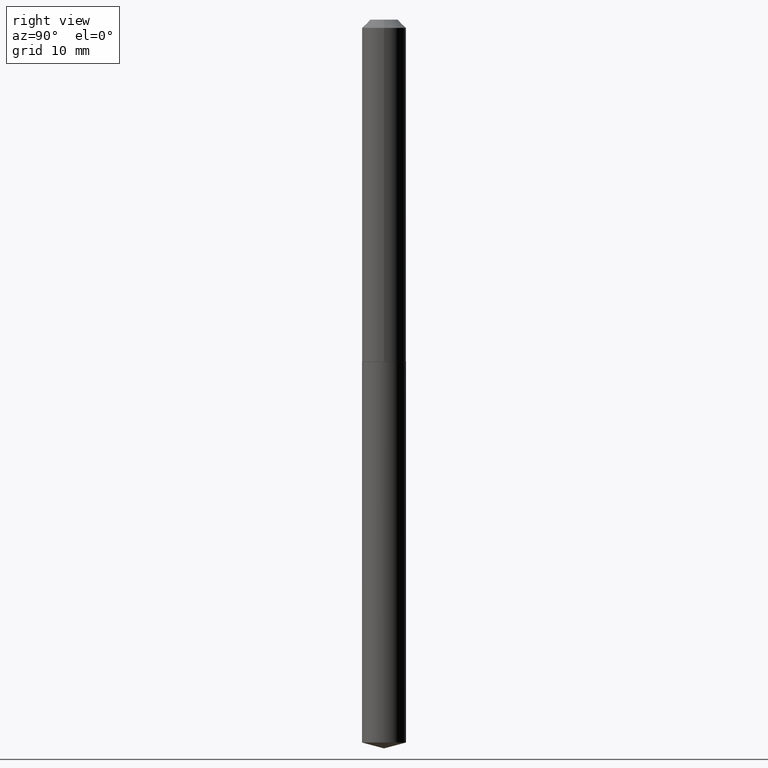
[diagram: clean part render]
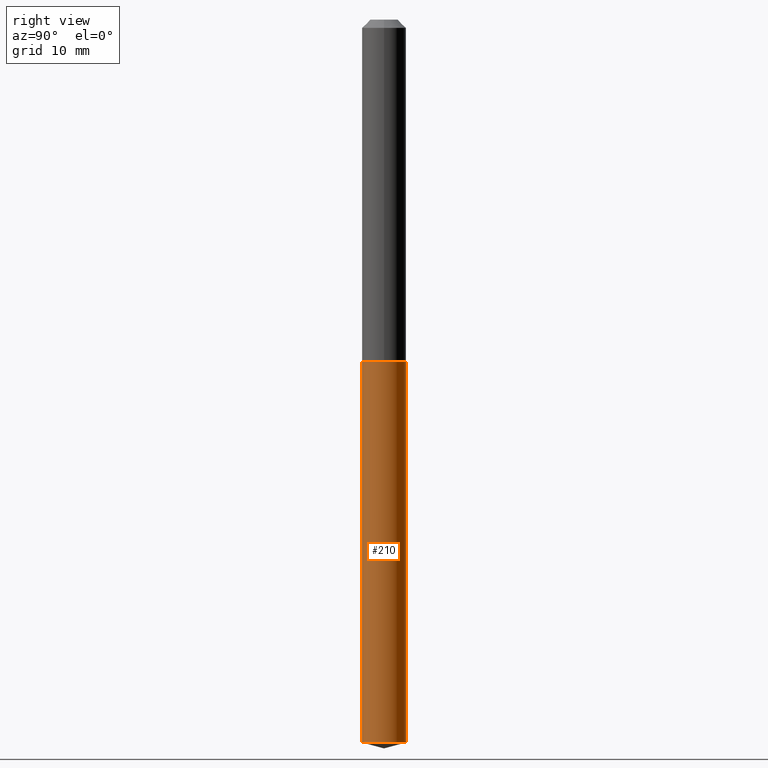
[diagram: same view with one face highlighted and labeled with its STEP entity id]
A machine part, right view. The second image highlights one B-rep face of the part: STEP entity #210.
In plain terms, the highlighted cylindrical surface (edge-blend (fillet) strip) has radius 2.1082 mm, axis along (-0, 0, 1).
Its self-contained STEP definition (entity closure, byte-faithful):
#7 = AXIS2_PLACEMENT_3D ( 'NONE', #113, #145, #199 ) ;
#9 = VERTEX_POINT ( 'NONE', #299 ) ;
#12 = VECTOR ( 'NONE', #128, 39.37007874015748143 ) ;
#17 = DIRECTION ( 'NONE',  ( -2.445430008687302555E-29, 3.491536899068260310E-15, 1.000000000000000000 ) ) ;
#24 = CARTESIAN_POINT ( 'NONE',  ( -5.795859022478934309E-16, -0.08300000000000953837, -2.727760217028216250 ) ) ;
#33 = DIRECTION ( 'NONE',  ( -2.445430008687302555E-29, 3.491536899068260310E-15, 1.000000000000000000 ) ) ;
#42 = CARTESIAN_POINT ( 'NONE',  ( -5.795859022479286338E-16, -0.08300000000000451461, -1.290999999999999481 ) ) ;
#51 = CARTESIAN_POINT ( 'NONE',  ( 6.670596778793894095E-29, -9.524003721313840210E-15, -2.727760217028216694 ) ) ;
#53 = ORIENTED_EDGE ( 'NONE', *, *, #249, .F. ) ;
#65 = LINE ( 'NONE', #97, #101 ) ;
#90 = CARTESIAN_POINT ( 'NONE',  ( 5.897504706809497452E-16, 0.08299999999999047029, -2.727760217028217582 ) ) ;
#95 = EDGE_CURVE ( 'NONE', #381, #9, #65, .T. ) ;
#97 = CARTESIAN_POINT ( 'NONE',  ( 5.897504706809146409E-16, 0.08299999999999550793, -1.290999999999999925 ) ) ;
#101 = VECTOR ( 'NONE', #33, 39.37007874015748143 ) ;
#110 = CYLINDRICAL_SURFACE ( 'NONE', #359, 0.08300000000000000433 ) ;
#113 = CARTESIAN_POINT ( 'NONE',  ( 3.157100228785010288E-29, -4.507502408446500497E-15, -1.290999999999999703 ) ) ;
#128 = DIRECTION ( 'NONE',  ( -2.445430008687302555E-29, 3.491536899068260310E-15, 1.000000000000000000 ) ) ;
#129 = AXIS2_PLACEMENT_3D ( 'NONE', #51, #17, #192 ) ;
#138 = FACE_OUTER_BOUND ( 'NONE', #385, .T. ) ;
#145 = DIRECTION ( 'NONE',  ( -2.445430008687302555E-29, 3.491536899068260310E-15, 1.000000000000000000 ) ) ;
#146 = ORIENTED_EDGE ( 'NONE', *, *, #184, .F. ) ;
#155 = LINE ( 'NONE', #42, #12 ) ;
#158 = CIRCLE ( 'NONE', #7, 0.08300000000000000433 ) ;
#184 = EDGE_CURVE ( 'NONE', #368, #226, #155, .T. ) ;
#192 = DIRECTION ( 'NONE',  ( -6.982962677686266711E-15, -1.000000000000000000, 6.582766249793405374E-15 ) ) ;
#199 = DIRECTION ( 'NONE',  ( -6.982962677686266711E-15, -1.000000000000000000, 3.291383124896702687E-15 ) ) ;
#210 = ADVANCED_FACE ( 'NONE', ( #138 ), #110, .T. ) ;
#224 = ORIENTED_EDGE ( 'NONE', *, *, #240, .T. ) ;
#226 = VERTEX_POINT ( 'NONE', #347 ) ;
#227 = DIRECTION ( 'NONE',  ( -6.982962677686266711E-15, -1.000000000000000000, 3.291383124896702687E-15 ) ) ;
#240 = EDGE_CURVE ( 'NONE', #368, #381, #261, .T. ) ;
#249 = EDGE_CURVE ( 'NONE', #226, #9, #158, .T. ) ;
#261 = CIRCLE ( 'NONE', #129, 0.08300000000000000433 ) ;
#299 = CARTESIAN_POINT ( 'NONE',  ( 5.897504706809500410E-16, 0.08299999999999550793, -1.290999999999999925 ) ) ;
#311 = ORIENTED_EDGE ( 'NONE', *, *, #95, .T. ) ;
#347 = CARTESIAN_POINT ( 'NONE',  ( -5.795859022479286338E-16, -0.08300000000000451461, -1.290999999999999481 ) ) ;
#352 = CARTESIAN_POINT ( 'NONE',  ( 3.157100228785010288E-29, -4.507502408446500497E-15, -1.290999999999999703 ) ) ;
#359 = AXIS2_PLACEMENT_3D ( 'NONE', #352, #374, #227 ) ;
#368 = VERTEX_POINT ( 'NONE', #24 ) ;
#374 = DIRECTION ( 'NONE',  ( -2.445430008687302555E-29, 3.491536899068260310E-15, 1.000000000000000000 ) ) ;
#381 = VERTEX_POINT ( 'NONE', #90 ) ;
#385 = EDGE_LOOP ( 'NONE', ( #224, #311, #53, #146 ) ) ;